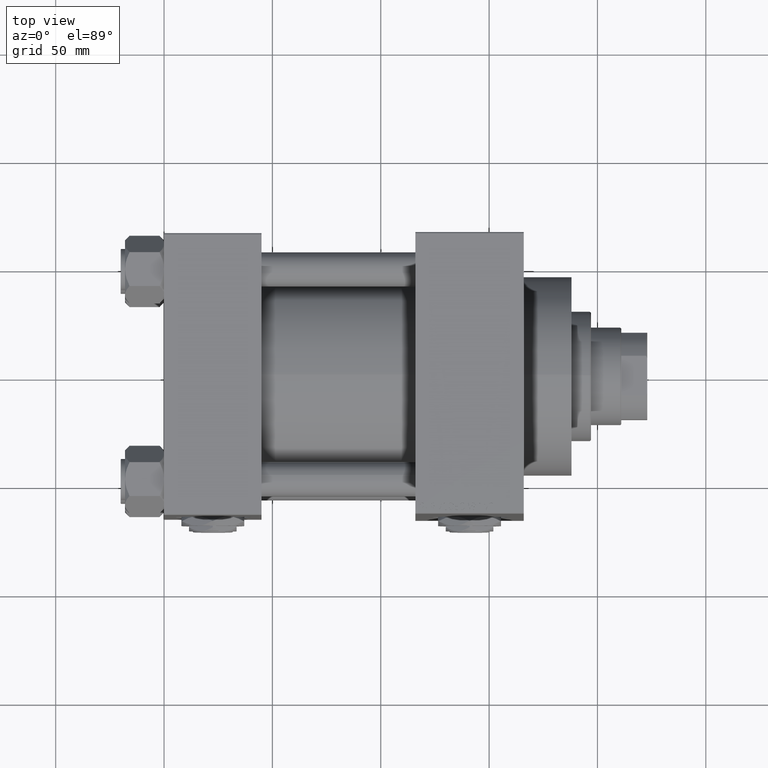
[diagram: clean part render]
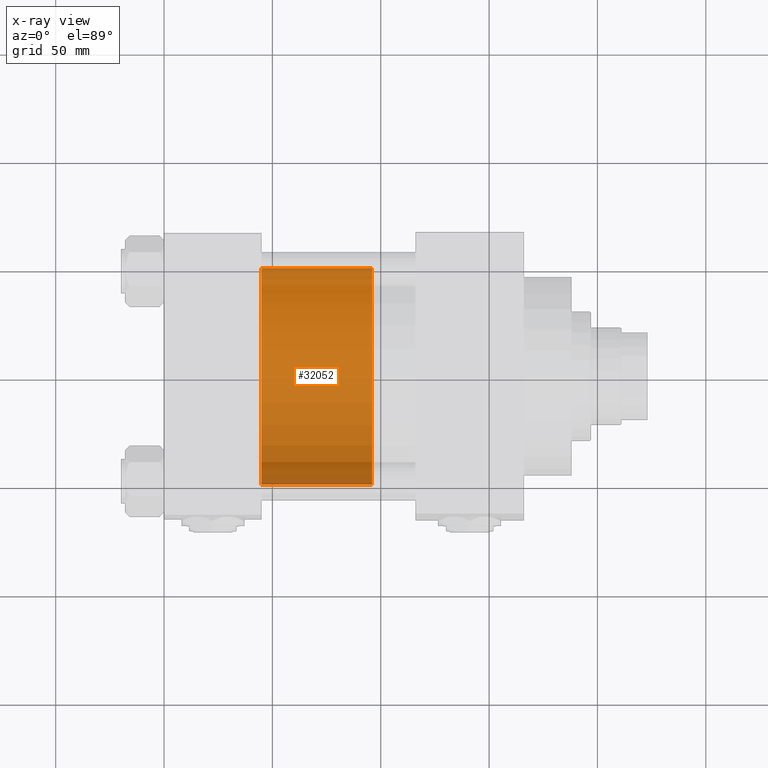
[diagram: x-ray — body ghosted, one internal face saturated and labeled with its STEP entity id]
A machine part, top view, then the same camera in x-ray: the body is ghosted and one INTERNAL B-rep face — a face not visible from any outside direction — is saturated and labeled: STEP entity #32052.
In plain terms, the highlighted cylindrical surface (partial cylindrical patch) has radius 50 mm, axis along (-1, 0, 0).
Its self-contained STEP definition (entity closure, byte-faithful):
#1270 = CARTESIAN_POINT ( 'NONE',  ( -50.00000000000000000, 0.000000000000000000, 51.00000000000000000 ) ) ;
#3449 = LINE ( 'NONE', #45992, #13010 ) ;
#4242 = DIRECTION ( 'NONE',  ( 0.000000000000000000, 0.000000000000000000, 1.000000000000000000 ) ) ;
#4680 = VECTOR ( 'NONE', #41751, 1000.000000000000000 ) ;
#7012 = LINE ( 'NONE', #11801, #4680 ) ;
#7389 = EDGE_CURVE ( 'NONE', #28325, #34893, #3449, .T. ) ;
#7761 = CARTESIAN_POINT ( 'NONE',  ( 50.00000000000000000, 6.123233995736766085E-15, 51.00000000000000000 ) ) ;
#8712 = AXIS2_PLACEMENT_3D ( 'NONE', #43012, #4242, #32180 ) ;
#9366 = DIRECTION ( 'NONE',  ( 1.000000000000000000, 0.000000000000000000, 0.000000000000000000 ) ) ;
#11801 = CARTESIAN_POINT ( 'NONE',  ( -50.00000000000000000, 0.000000000000000000, 51.00000000000000000 ) ) ;
#13010 = VECTOR ( 'NONE', #42220, 1000.000000000000000 ) ;
#13789 = CARTESIAN_POINT ( 'NONE',  ( 0.000000000000000000, 0.000000000000000000, 51.00000000000000000 ) ) ;
#15368 = ORIENTED_EDGE ( 'NONE', *, *, #7389, .T. ) ;
#21547 = AXIS2_PLACEMENT_3D ( 'NONE', #13789, #44492, #39976 ) ;
#22583 = VERTEX_POINT ( 'NONE', #1270 ) ;
#24615 = FACE_OUTER_BOUND ( 'NONE', #36256, .T. ) ;
#27752 = CARTESIAN_POINT ( 'NONE',  ( 0.000000000000000000, 0.000000000000000000, 0.000000000000000000 ) ) ;
#28325 = VERTEX_POINT ( 'NONE', #7761 ) ;
#29106 = EDGE_CURVE ( 'NONE', #22583, #48369, #7012, .T. ) ;
#29182 = EDGE_CURVE ( 'NONE', #28325, #22583, #30394, .T. ) ;
#29282 = CARTESIAN_POINT ( 'NONE',  ( -50.00000000000000000, 0.000000000000000000, 0.000000000000000000 ) ) ;
#30394 = CIRCLE ( 'NONE', #8712, 50.00000000000000000 ) ;
#31785 = ORIENTED_EDGE ( 'NONE', *, *, #29182, .F. ) ;
#32052 = ADVANCED_FACE ( 'NONE', ( #24615 ), #48250, .T. ) ;
#32180 = DIRECTION ( 'NONE',  ( 1.000000000000000000, 0.000000000000000000, 0.000000000000000000 ) ) ;
#33397 = CARTESIAN_POINT ( 'NONE',  ( 50.00000000000000000, 6.123233995736766085E-15, 0.000000000000000000 ) ) ;
#33448 = EDGE_CURVE ( 'NONE', #34893, #48369, #36099, .T. ) ;
#33521 = ORIENTED_EDGE ( 'NONE', *, *, #29106, .F. ) ;
#33661 = AXIS2_PLACEMENT_3D ( 'NONE', #27752, #35321, #9366 ) ;
#34893 = VERTEX_POINT ( 'NONE', #33397 ) ;
#35321 = DIRECTION ( 'NONE',  ( 0.000000000000000000, 0.000000000000000000, 1.000000000000000000 ) ) ;
#36099 = CIRCLE ( 'NONE', #33661, 50.00000000000000000 ) ;
#36256 = EDGE_LOOP ( 'NONE', ( #31785, #15368, #40113, #33521 ) ) ;
#39976 = DIRECTION ( 'NONE',  ( -1.000000000000000000, 0.000000000000000000, 0.000000000000000000 ) ) ;
#40113 = ORIENTED_EDGE ( 'NONE', *, *, #33448, .T. ) ;
#41751 = DIRECTION ( 'NONE',  ( -0.000000000000000000, -0.000000000000000000, -1.000000000000000000 ) ) ;
#42220 = DIRECTION ( 'NONE',  ( -0.000000000000000000, -0.000000000000000000, -1.000000000000000000 ) ) ;
#43012 = CARTESIAN_POINT ( 'NONE',  ( 0.000000000000000000, 0.000000000000000000, 51.00000000000000000 ) ) ;
#44492 = DIRECTION ( 'NONE',  ( -0.000000000000000000, -0.000000000000000000, -1.000000000000000000 ) ) ;
#45992 = CARTESIAN_POINT ( 'NONE',  ( 50.00000000000000000, 6.123233995736766085E-15, 51.00000000000000000 ) ) ;
#48250 = CYLINDRICAL_SURFACE ( 'NONE', #21547, 50.00000000000000000 ) ;
#48369 = VERTEX_POINT ( 'NONE', #29282 ) ;